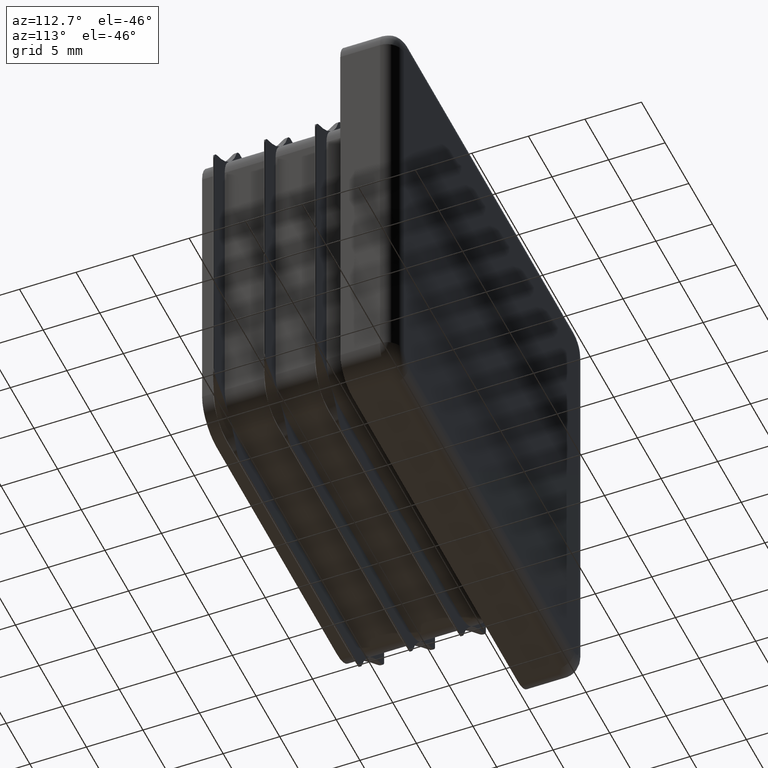
[diagram: clean part render]
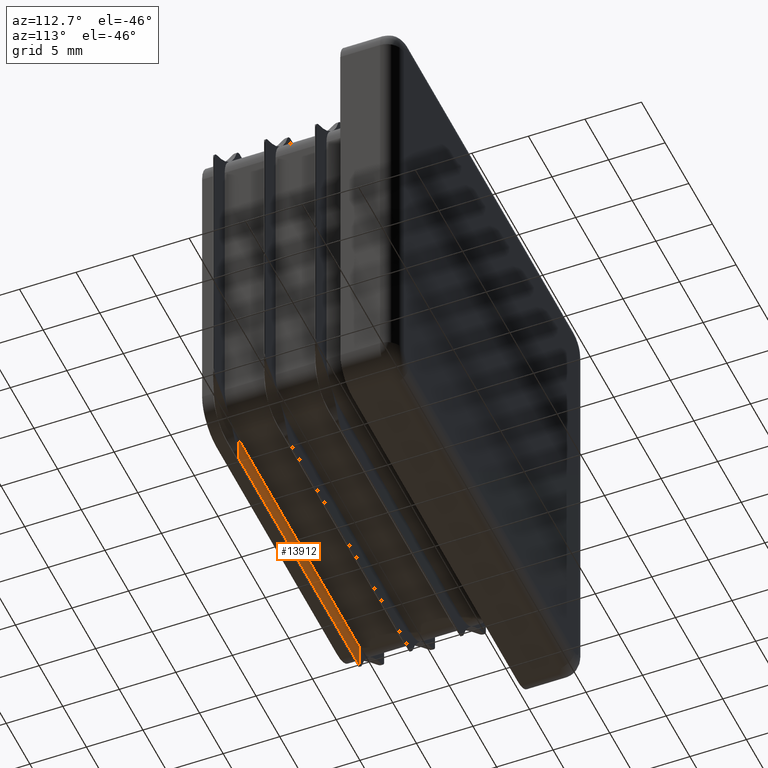
[diagram: same view with one face highlighted and labeled with its STEP entity id]
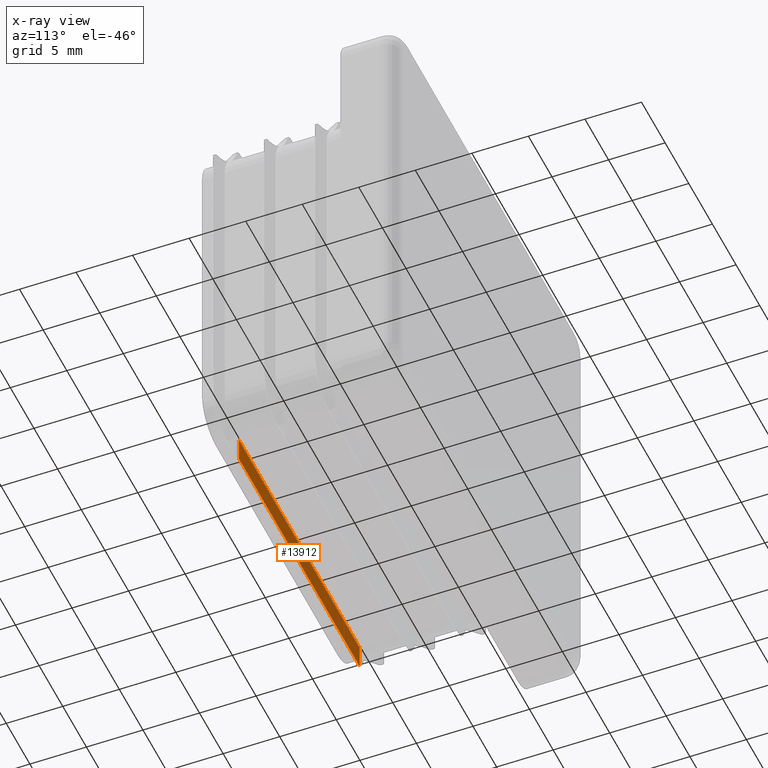
[diagram: x-ray of the same camera — body ghosted, the highlighted face saturated]
A machine part, auxiliary view. The second image highlights one B-rep face of the part: STEP entity #13912.
The next image is the same camera in x-ray: the body ghosted, the highlighted face saturated — about 0% of this face is hidden behind the body in this view.
In plain terms, the highlighted planar face has unit normal (0, -1, -0).
Its self-contained STEP definition (entity closure, byte-faithful):
#18 = DIRECTION ( 'NONE',  ( -1.000000000000000000, 0.000000000000000000, 0.000000000000000000 ) ) ;
#92 = CARTESIAN_POINT ( 'NONE',  ( 12.75000000000000178, -12.00000000000000000, -15.75000000000009415 ) ) ;
#217 = ORIENTED_EDGE ( 'NONE', *, *, #1496, .T. ) ;
#257 = CARTESIAN_POINT ( 'NONE',  ( -12.64722551352478952, -12.00000000000000178, -17.95000000000010232 ) ) ;
#534 = DIRECTION ( 'NONE',  ( 0.000000000000000000, -1.000000000000000000, -0.000000000000000000 ) ) ;
#594 = VERTEX_POINT ( 'NONE', #17285 ) ;
#643 = CARTESIAN_POINT ( 'NONE',  ( -12.75000000000000178, -12.00000000000000000, -15.75000000000009415 ) ) ;
#828 = PLANE ( 'NONE',  #9447 ) ;
#1496 = EDGE_CURVE ( 'NONE', #14137, #7887, #9119, .T. ) ;
#2140 = CARTESIAN_POINT ( 'NONE',  ( 12.75000000000000178, -12.00000000000000178, -17.90981028720142021 ) ) ;
#2317 = VECTOR ( 'NONE', #8962, 1000.000000000000000 ) ;
#2514 = CARTESIAN_POINT ( 'NONE',  ( 12.75000000000000178, -12.00000000000000000, -15.75000000000009415 ) ) ;
#2611 = VECTOR ( 'NONE', #18, 1000.000000000000000 ) ;
#3468 = CARTESIAN_POINT ( 'NONE',  ( -12.33497561360488604, -12.00000000000000178, -17.00000000000009592 ) ) ;
#4019 = EDGE_CURVE ( 'NONE', #14137, #5816, #5108, .T. ) ;
#4243 = EDGE_LOOP ( 'NONE', ( #17499, #9108, #12047, #6538, #217, #8682 ) ) ;
#4814 = FACE_OUTER_BOUND ( 'NONE', #4243, .T. ) ;
#5108 = LINE ( 'NONE', #20717, #13037 ) ;
#5272 = LINE ( 'NONE', #643, #2317 ) ;
#5278 = CIRCLE ( 'NONE', #13070, 1.000000000000000888 ) ;
#5816 = VERTEX_POINT ( 'NONE', #20245 ) ;
#6318 = CARTESIAN_POINT ( 'NONE',  ( 12.75000000000000178, -12.00000000000000000, -17.95000000000010232 ) ) ;
#6538 = ORIENTED_EDGE ( 'NONE', *, *, #4019, .F. ) ;
#6775 = EDGE_CURVE ( 'NONE', #594, #15742, #5272, .T. ) ;
#7887 = VERTEX_POINT ( 'NONE', #14890 ) ;
#7920 = EDGE_CURVE ( 'NONE', #594, #21577, #5278, .T. ) ;
#8465 = DIRECTION ( 'NONE',  ( 0.000000000000000000, 1.000000000000000000, 0.000000000000000000 ) ) ;
#8682 = ORIENTED_EDGE ( 'NONE', *, *, #17840, .T. ) ;
#8962 = DIRECTION ( 'NONE',  ( -0.000000000000000000, -0.000000000000000000, 1.000000000000000000 ) ) ;
#9108 = ORIENTED_EDGE ( 'NONE', *, *, #6775, .T. ) ;
#9119 = CIRCLE ( 'NONE', #13161, 1.000000000000000888 ) ;
#9447 = AXIS2_PLACEMENT_3D ( 'NONE', #2514, #534, #12912 ) ;
#10137 = DIRECTION ( 'NONE',  ( -1.000000000000000000, 0.000000000000000000, 0.000000000000000000 ) ) ;
#10600 = LINE ( 'NONE', #92, #2611 ) ;
#12047 = ORIENTED_EDGE ( 'NONE', *, *, #16512, .F. ) ;
#12912 = DIRECTION ( 'NONE',  ( 0.000000000000000000, 0.000000000000000000, -1.000000000000000000 ) ) ;
#13037 = VECTOR ( 'NONE', #17378, 1000.000000000000000 ) ;
#13070 = AXIS2_PLACEMENT_3D ( 'NONE', #3468, #18950, #15324 ) ;
#13161 = AXIS2_PLACEMENT_3D ( 'NONE', #16519, #8465, #19690 ) ;
#13912 = ADVANCED_FACE ( 'NONE', ( #4814 ), #828, .F. ) ;
#14137 = VERTEX_POINT ( 'NONE', #2140 ) ;
#14890 = CARTESIAN_POINT ( 'NONE',  ( 12.64722551352478952, -12.00000000000000178, -17.95000000000010232 ) ) ;
#15324 = DIRECTION ( 'NONE',  ( 0.000000000000000000, 0.000000000000000000, -1.000000000000000000 ) ) ;
#15742 = VERTEX_POINT ( 'NONE', #16926 ) ;
#16134 = VECTOR ( 'NONE', #10137, 1000.000000000000000 ) ;
#16512 = EDGE_CURVE ( 'NONE', #5816, #15742, #10600, .T. ) ;
#16519 = CARTESIAN_POINT ( 'NONE',  ( 12.33497561360488604, -12.00000000000000178, -17.00000000000009592 ) ) ;
#16926 = CARTESIAN_POINT ( 'NONE',  ( -12.75000000000000178, -12.00000000000000000, -15.75000000000000000 ) ) ;
#17285 = CARTESIAN_POINT ( 'NONE',  ( -12.75000000000000178, -12.00000000000000178, -17.90981028720142021 ) ) ;
#17378 = DIRECTION ( 'NONE',  ( -0.000000000000000000, -0.000000000000000000, 1.000000000000000000 ) ) ;
#17499 = ORIENTED_EDGE ( 'NONE', *, *, #7920, .F. ) ;
#17840 = EDGE_CURVE ( 'NONE', #7887, #21577, #19296, .T. ) ;
#18950 = DIRECTION ( 'NONE',  ( -0.000000000000000000, -1.000000000000000000, -0.000000000000000000 ) ) ;
#19296 = LINE ( 'NONE', #6318, #16134 ) ;
#19690 = DIRECTION ( 'NONE',  ( 8.673617379884027583E-15, 0.000000000000000000, -1.000000000000000000 ) ) ;
#20245 = CARTESIAN_POINT ( 'NONE',  ( 12.75000000000000178, -12.00000000000000000, -15.75000000000009415 ) ) ;
#20717 = CARTESIAN_POINT ( 'NONE',  ( 12.75000000000000178, -12.00000000000000000, -15.75000000000009415 ) ) ;
#21577 = VERTEX_POINT ( 'NONE', #257 ) ;